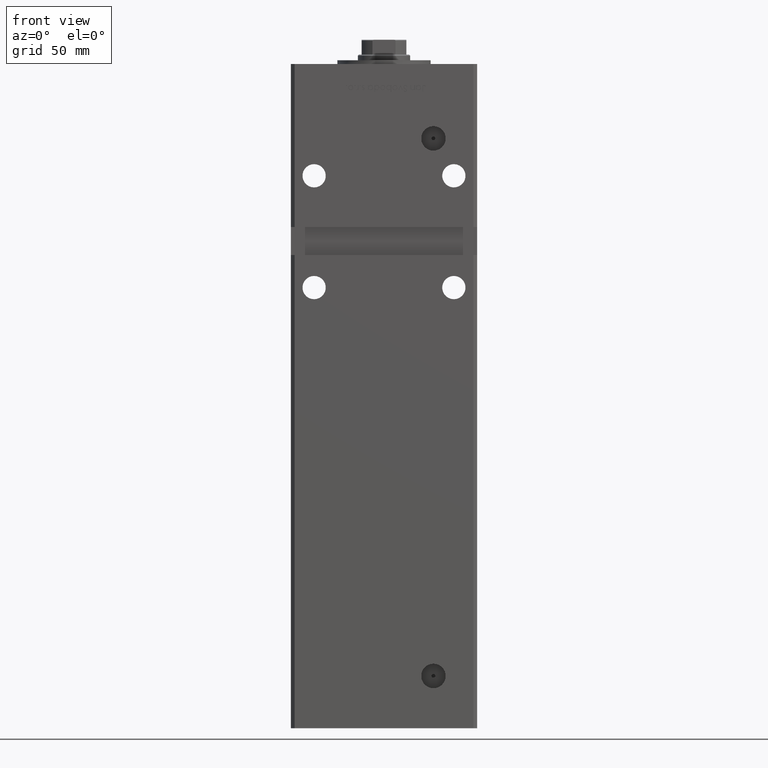
[diagram: clean part render]
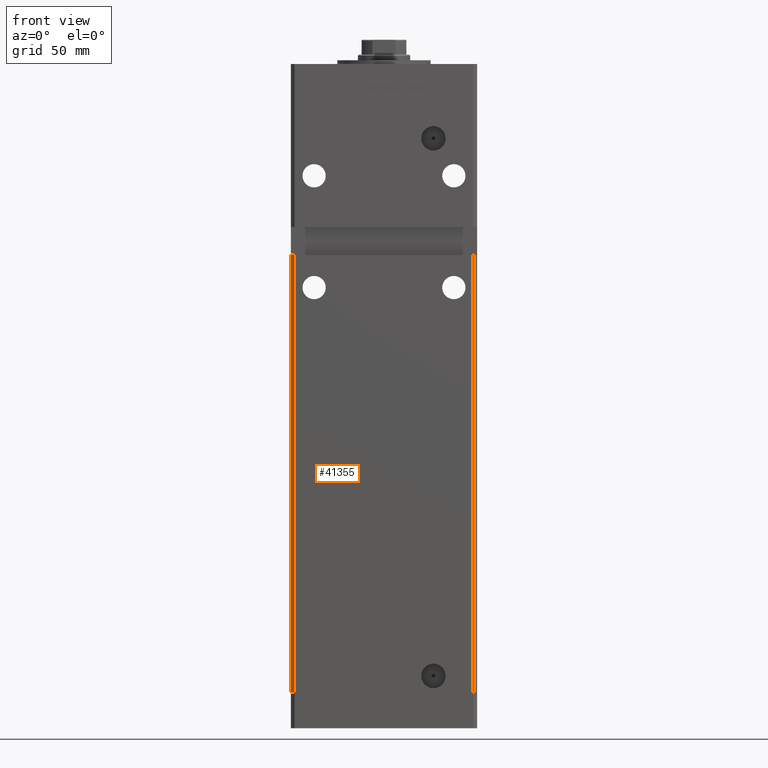
[diagram: same view with one face highlighted and labeled with its STEP entity id]
A machine part, front view. The second image highlights one B-rep face of the part: STEP entity #41355.
In plain terms, the highlighted planar face has unit normal (0.7071, 0.7071, 0).
Its self-contained STEP definition (entity closure, byte-faithful):
#869 = VECTOR ( 'NONE', #31274, 1000.000000000000114 ) ;
#1835 = VERTEX_POINT ( 'NONE', #37860 ) ;
#2361 = LINE ( 'NONE', #22539, #29698 ) ;
#2463 = CARTESIAN_POINT ( 'NONE',  ( -47.99999999999998579, -43.50000000000000000, 0.000000000000000000 ) ) ;
#5402 = VERTEX_POINT ( 'NONE', #2463 ) ;
#6735 = CARTESIAN_POINT ( 'NONE',  ( -49.99999999999998579, -41.49999999999999289, 0.000000000000000000 ) ) ;
#8736 = EDGE_CURVE ( 'NONE', #10575, #5402, #2361, .T. ) ;
#9519 = DIRECTION ( 'NONE',  ( -0.7071067811865474617, 0.7071067811865474617, 0.000000000000000000 ) ) ;
#9790 = LINE ( 'NONE', #26193, #42738 ) ;
#10575 = VERTEX_POINT ( 'NONE', #51579 ) ;
#10821 = CARTESIAN_POINT ( 'NONE',  ( -49.99999999999998579, -41.49999999999999289, 235.0000000000000000 ) ) ;
#14527 = VECTOR ( 'NONE', #19029, 1000.000000000000114 ) ;
#17720 = ORIENTED_EDGE ( 'NONE', *, *, #24108, .T. ) ;
#19029 = DIRECTION ( 'NONE',  ( 0.7071067811865474617, -0.7071067811865474617, 0.000000000000000000 ) ) ;
#19351 = ORIENTED_EDGE ( 'NONE', *, *, #8736, .F. ) ;
#20093 = EDGE_CURVE ( 'NONE', #1835, #21552, #9790, .T. ) ;
#21552 = VERTEX_POINT ( 'NONE', #6735 ) ;
#22539 = CARTESIAN_POINT ( 'NONE',  ( -47.99999999999998579, -43.50000000000000000, 318.5000000000000000 ) ) ;
#24108 = EDGE_CURVE ( 'NONE', #21552, #5402, #31390, .T. ) ;
#26193 = CARTESIAN_POINT ( 'NONE',  ( -49.99999999999998579, -41.49999999999999289, 318.5000000000000000 ) ) ;
#29698 = VECTOR ( 'NONE', #47523, 1000.000000000000000 ) ;
#29960 = FACE_OUTER_BOUND ( 'NONE', #40569, .T. ) ;
#31274 = DIRECTION ( 'NONE',  ( -0.7071067811865474617, 0.7071067811865474617, 0.000000000000000000 ) ) ;
#31390 = LINE ( 'NONE', #35683, #14527 ) ;
#33463 = DIRECTION ( 'NONE',  ( 0.7071067811865475727, 0.7071067811865475727, -0.000000000000000000 ) ) ;
#35683 = CARTESIAN_POINT ( 'NONE',  ( -49.99999999999998579, -41.49999999999999289, 0.000000000000000000 ) ) ;
#37860 = CARTESIAN_POINT ( 'NONE',  ( -49.99999999999998579, -41.49999999999999289, 235.0000000000000000 ) ) ;
#39785 = ORIENTED_EDGE ( 'NONE', *, *, #49472, .T. ) ;
#40569 = EDGE_LOOP ( 'NONE', ( #19351, #39785, #41363, #17720 ) ) ;
#41117 = AXIS2_PLACEMENT_3D ( 'NONE', #46343, #33463, #9519 ) ;
#41355 = ADVANCED_FACE ( 'NONE', ( #29960 ), #42815, .F. ) ;
#41363 = ORIENTED_EDGE ( 'NONE', *, *, #20093, .T. ) ;
#42559 = LINE ( 'NONE', #10821, #869 ) ;
#42567 = DIRECTION ( 'NONE',  ( -0.000000000000000000, -0.000000000000000000, -1.000000000000000000 ) ) ;
#42738 = VECTOR ( 'NONE', #42567, 1000.000000000000000 ) ;
#42815 = PLANE ( 'NONE',  #41117 ) ;
#46343 = CARTESIAN_POINT ( 'NONE',  ( -49.99999999999998579, -41.49999999999999289, 318.5000000000000000 ) ) ;
#47523 = DIRECTION ( 'NONE',  ( -0.000000000000000000, -0.000000000000000000, -1.000000000000000000 ) ) ;
#49472 = EDGE_CURVE ( 'NONE', #10575, #1835, #42559, .T. ) ;
#51579 = CARTESIAN_POINT ( 'NONE',  ( -47.99999999999998579, -43.50000000000000000, 235.0000000000000000 ) ) ;